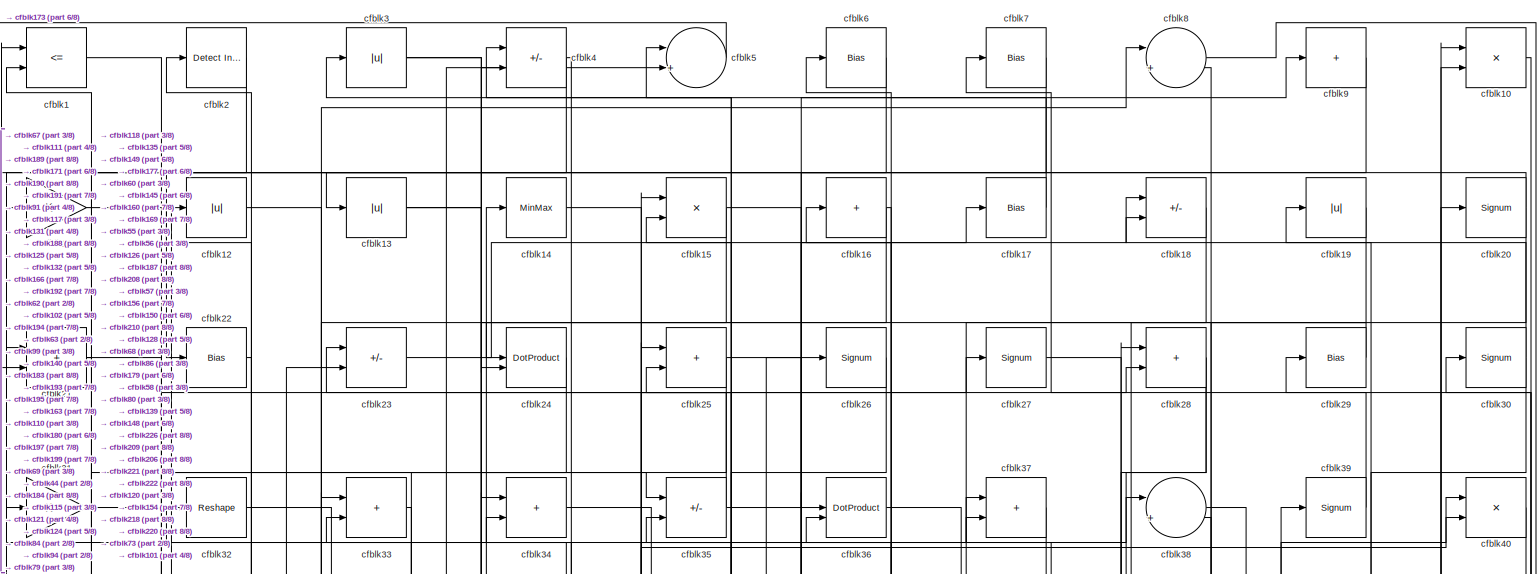
[diagram: root canvas - part 1/8, full width, top band]
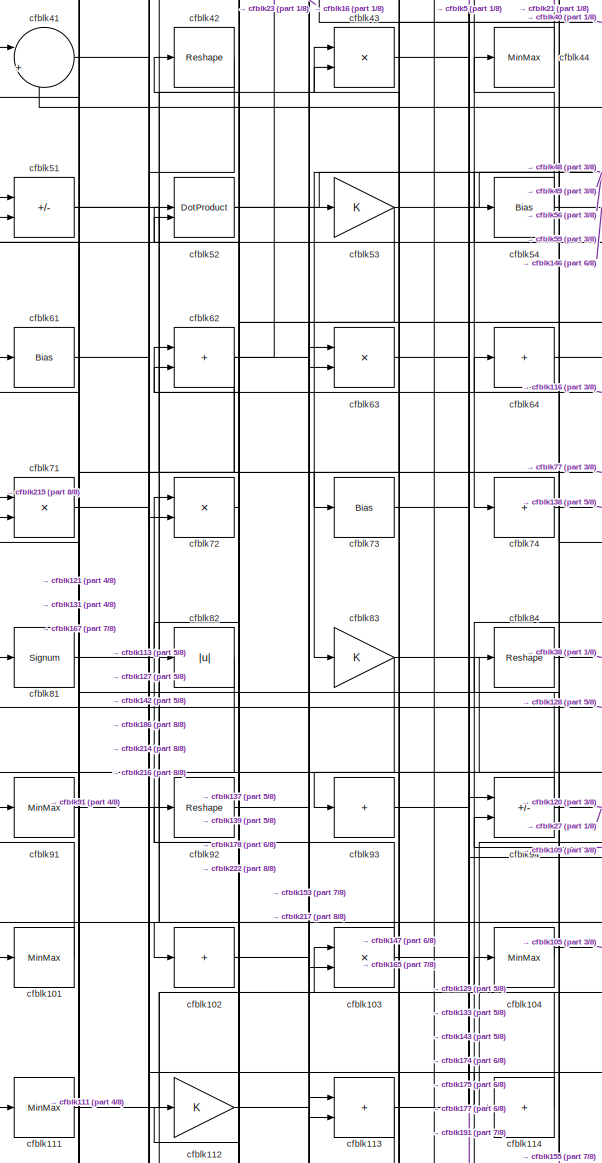
[diagram: root canvas - part 2/8, middle left region]
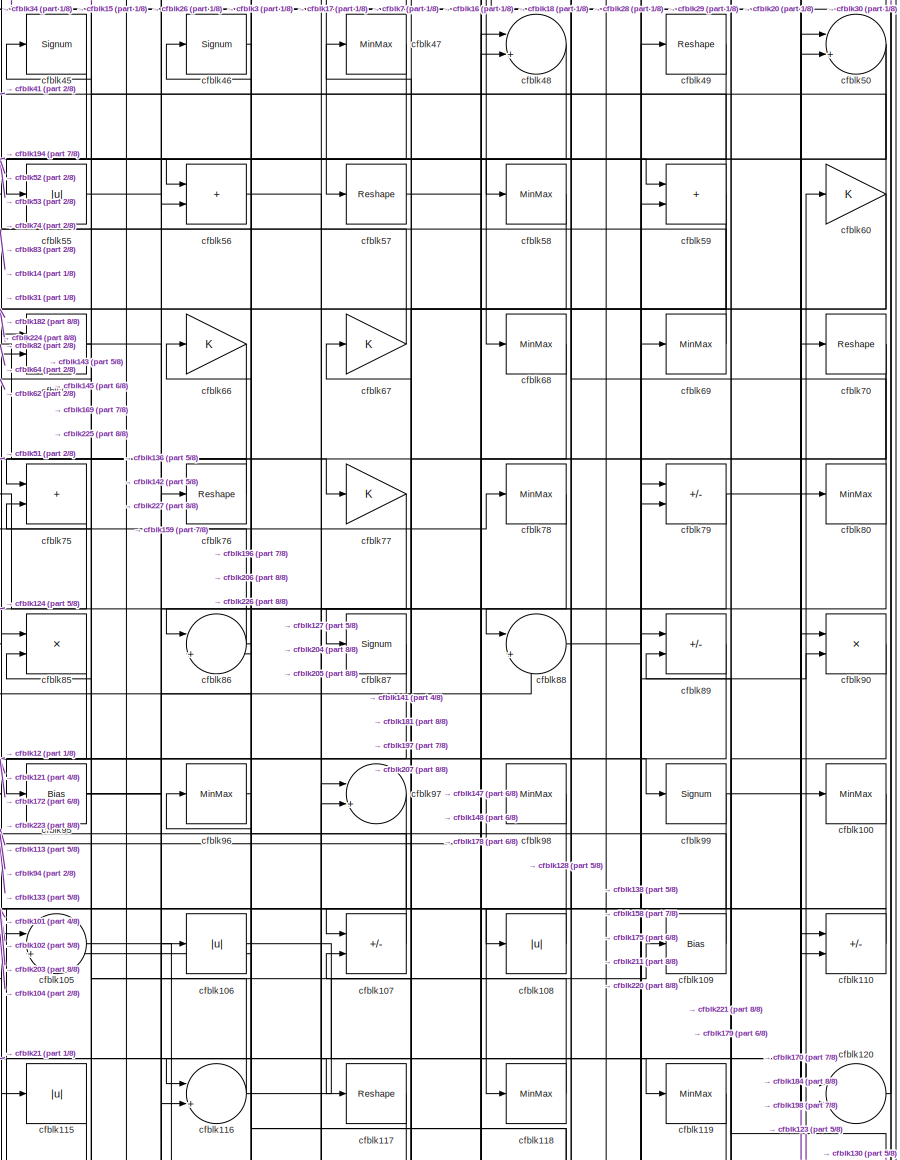
[diagram: root canvas - part 3/8, middle right region]
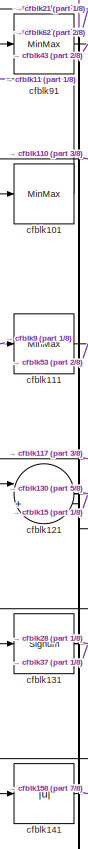
[diagram: root canvas - part 4/8, middle left region]
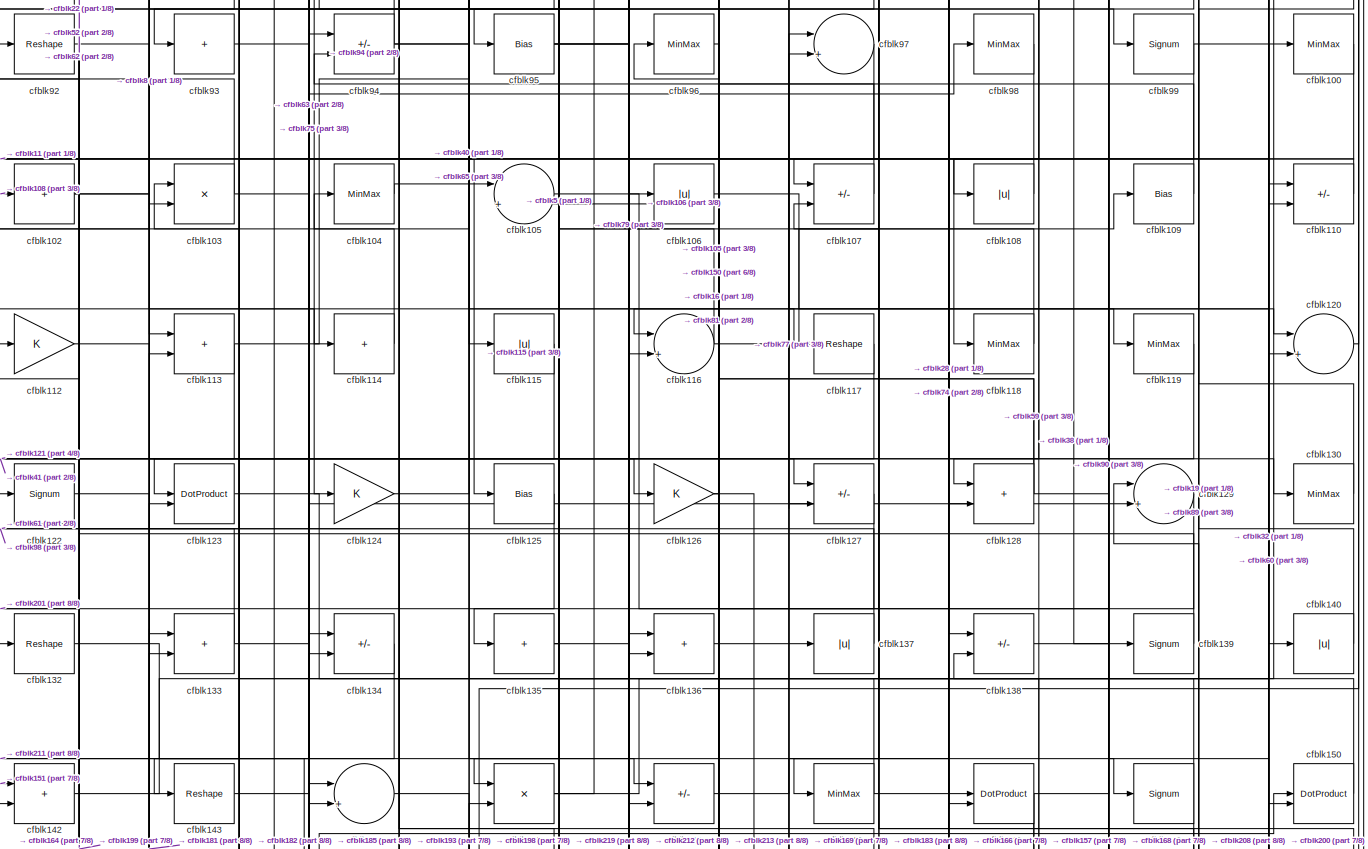
[diagram: root canvas - part 5/8, full width, middle band]
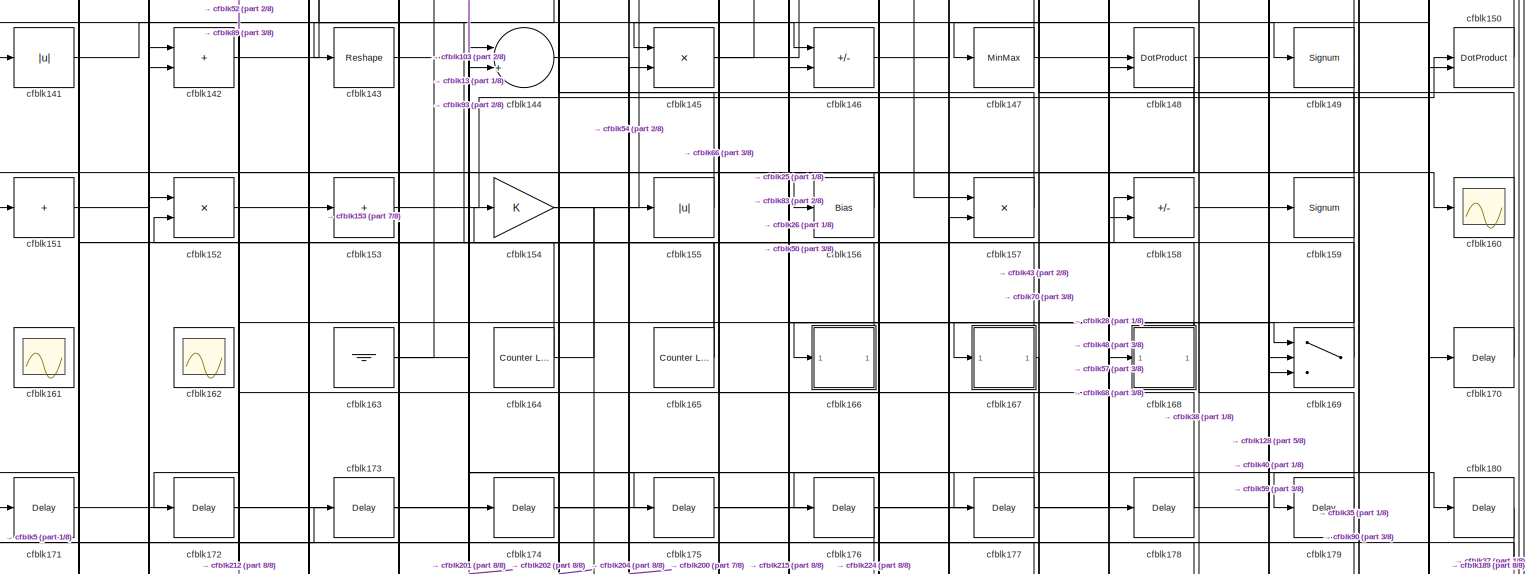
[diagram: root canvas - part 6/8, full width, bottom band]
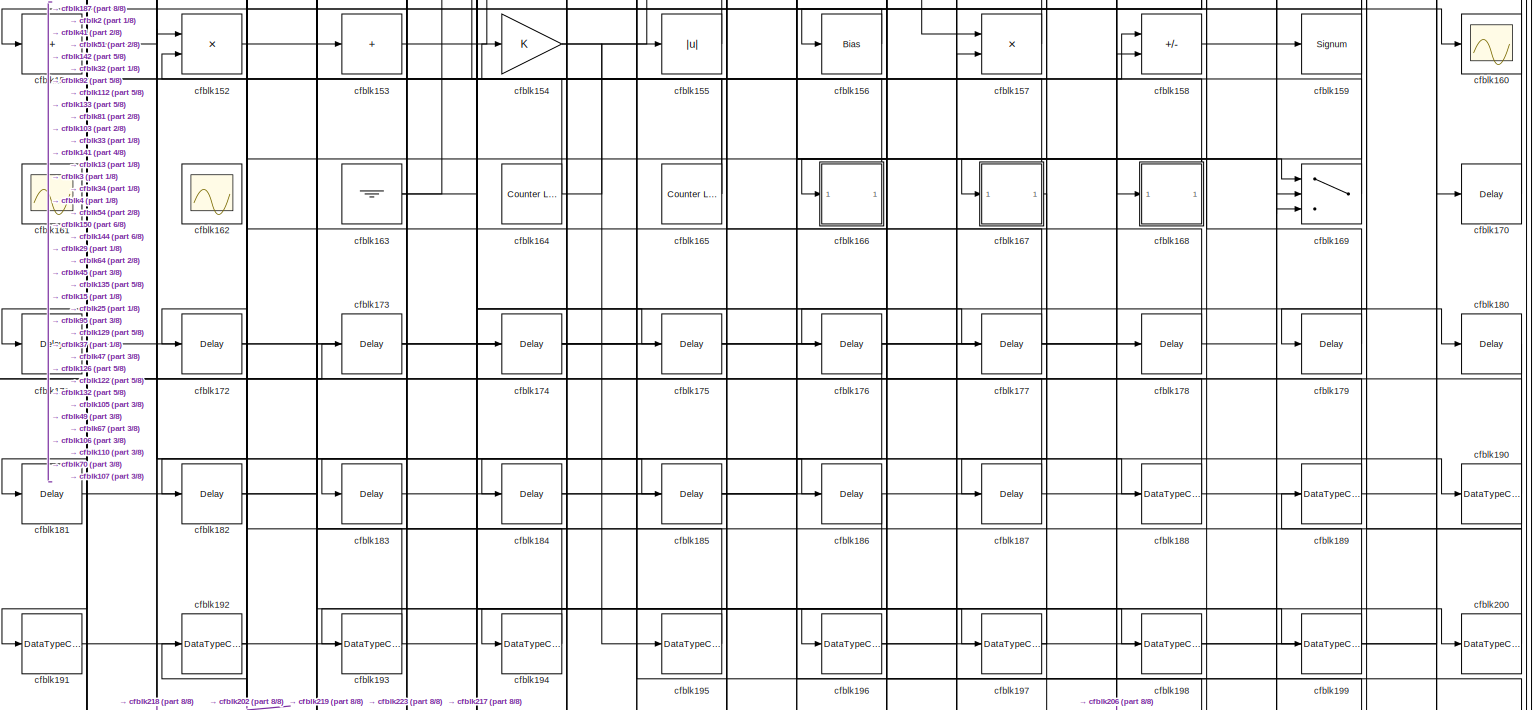
[diagram: root canvas - part 7/8, full width, bottom band]
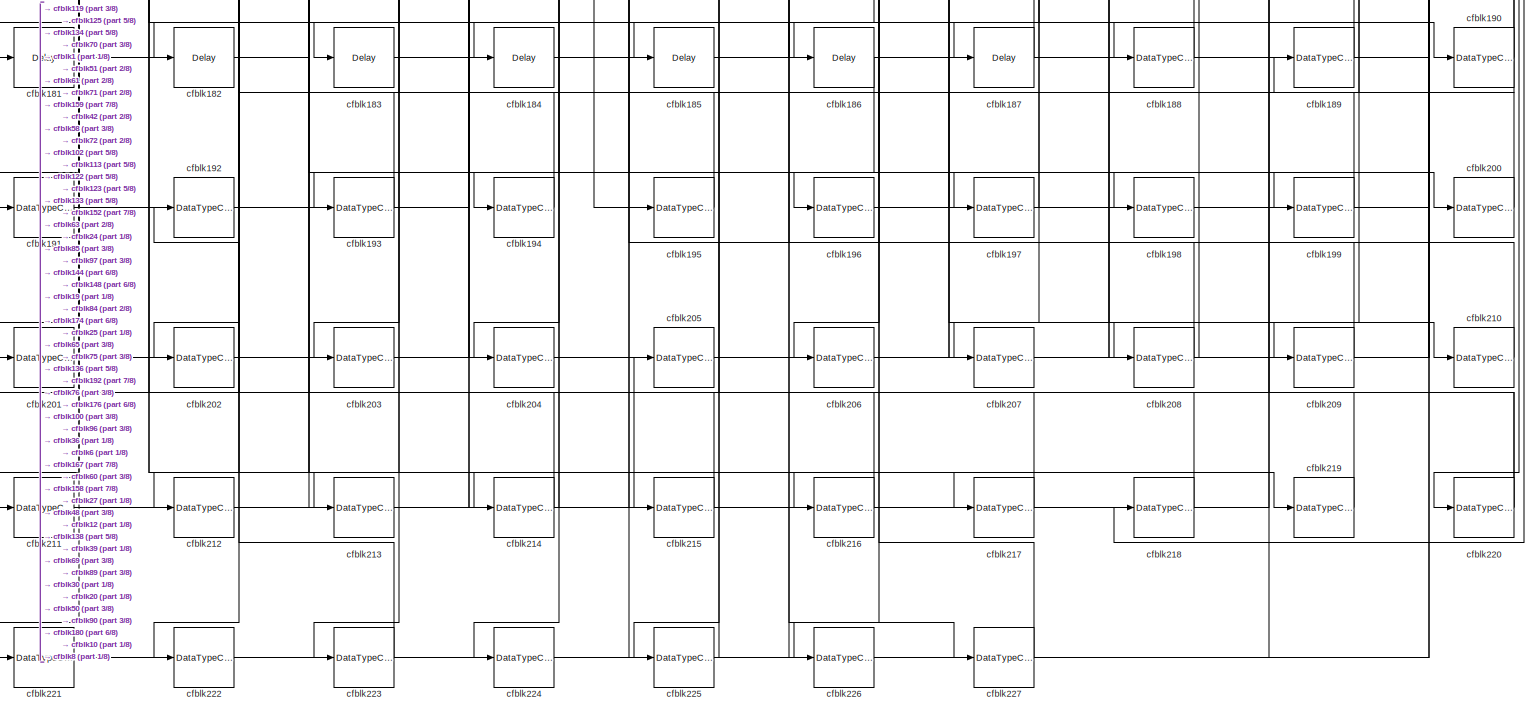
[diagram: root canvas - part 8/8, full width, bottom band]
MODEL slx_cafac20f28f2
KIND model
CONFIG AbsTol = auto
CONFIG EnableMultiTasking = off
CONFIG FixedStep = auto
CONFIG MaxStep = auto
CONFIG MinStep = auto
CONFIG RelTol = 1e-3
CONFIG SampleTimeConstraint = Unconstrained
CONFIG SolverName = VariableStepAuto
CONFIG StartTime = 0.0
CONFIG StopTime = 10.0
BLOCK [RelationalOperator] cfblk1
  InputSameDT = off
  Operator = <=
  OutDataTypeStr = boolean
BLOCK [Product] cfblk10
  Inputs = */
  RndMeth = Zero
  SaturateOnIntegerOverflow = on
BLOCK [MinMax] cfblk100
BLOCK [MinMax] cfblk101
BLOCK [Sum] cfblk102
  IconShape = rectangular
  Inputs = +
BLOCK [Product] cfblk103
  Inputs = */
  RndMeth = Zero
  SaturateOnIntegerOverflow = on
BLOCK [MinMax] cfblk104
BLOCK [Sum] cfblk105
  Inputs = |++
BLOCK [Abs] cfblk106
  SaturateOnIntegerOverflow = off
BLOCK [Sum] cfblk107
  IconShape = rectangular
  Inputs = +-
BLOCK [Abs] cfblk108
  SaturateOnIntegerOverflow = off
BLOCK [Bias] cfblk109
  Bias = 0.0
  SaturateOnIntegerOverflow = off
BLOCK [Gain] cfblk11
BLOCK [Sum] cfblk110
  IconShape = rectangular
  Inputs = +-
BLOCK [MinMax] cfblk111
BLOCK [Gain] cfblk112
BLOCK [Sum] cfblk113
  IconShape = rectangular
BLOCK [Sum] cfblk114
  IconShape = rectangular
  Inputs = +
BLOCK [Abs] cfblk115
  SaturateOnIntegerOverflow = off
BLOCK [Sum] cfblk116
  Inputs = |++
BLOCK [Reshape] cfblk117
BLOCK [MinMax] cfblk118
BLOCK [MinMax] cfblk119
BLOCK [Abs] cfblk12
  SaturateOnIntegerOverflow = off
BLOCK [Sum] cfblk120
  Inputs = |++
BLOCK [Sum] cfblk121
  Inputs = |++
BLOCK [Signum] cfblk122
BLOCK [DotProduct] cfblk123
  OutDataTypeStr = Inherit: Inherit via internal rule
BLOCK [Gain] cfblk124
BLOCK [Bias] cfblk125
  Bias = 0.0
  SaturateOnIntegerOverflow = off
BLOCK [Gain] cfblk126
BLOCK [Sum] cfblk127
  IconShape = rectangular
  Inputs = +-
BLOCK [Sum] cfblk128
  IconShape = rectangular
BLOCK [Sum] cfblk129
  Inputs = |++
BLOCK [Abs] cfblk13
  SaturateOnIntegerOverflow = off
BLOCK [MinMax] cfblk130
BLOCK [Signum] cfblk131
BLOCK [Reshape] cfblk132
BLOCK [Sum] cfblk133
  IconShape = rectangular
BLOCK [Sum] cfblk134
  IconShape = rectangular
  Inputs = +-
BLOCK [Sum] cfblk135
  IconShape = rectangular
  Inputs = +
BLOCK [Sum] cfblk136
  IconShape = rectangular
BLOCK [Abs] cfblk137
  SaturateOnIntegerOverflow = off
BLOCK [Sum] cfblk138
  IconShape = rectangular
  Inputs = +-
BLOCK [Signum] cfblk139
BLOCK [MinMax] cfblk14
BLOCK [Abs] cfblk140
  SaturateOnIntegerOverflow = off
BLOCK [Abs] cfblk141
  SaturateOnIntegerOverflow = off
BLOCK [Sum] cfblk142
  IconShape = rectangular
BLOCK [Reshape] cfblk143
BLOCK [Sum] cfblk144
  Inputs = |++
BLOCK [Product] cfblk145
  Inputs = */
  RndMeth = Zero
  SaturateOnIntegerOverflow = on
BLOCK [Sum] cfblk146
  IconShape = rectangular
  Inputs = +-
BLOCK [MinMax] cfblk147
BLOCK [DotProduct] cfblk148
  OutDataTypeStr = Inherit: Inherit via internal rule
BLOCK [Signum] cfblk149
BLOCK [Product] cfblk15
  Inputs = */
  RndMeth = Zero
  SaturateOnIntegerOverflow = on
BLOCK [DotProduct] cfblk150
  OutDataTypeStr = Inherit: Inherit via internal rule
BLOCK [Sum] cfblk151
  IconShape = rectangular
  Inputs = +
BLOCK [Product] cfblk152
  Inputs = */
  RndMeth = Zero
  SaturateOnIntegerOverflow = on
BLOCK [Sum] cfblk153
  IconShape = rectangular
  Inputs = +
BLOCK [Gain] cfblk154
BLOCK [Abs] cfblk155
  SaturateOnIntegerOverflow = off
BLOCK [Bias] cfblk156
  Bias = 0.0
  SaturateOnIntegerOverflow = off
BLOCK [Product] cfblk157
  Inputs = */
  RndMeth = Zero
  SaturateOnIntegerOverflow = on
BLOCK [Sum] cfblk158
  IconShape = rectangular
  Inputs = +-
BLOCK [Signum] cfblk159
BLOCK [Sum] cfblk16
  IconShape = rectangular
  Inputs = +
BLOCK [Scope] cfblk160
  Floating = off
  NumInputPorts = 1
  ScopeSpecificationString = Simulink.scopes.TimeScopeBlockCfg('CurrentConfiguration', extmgr.ConfigurationSet(extmgr.Configuration('Core','General UI',true),extmgr.Configuration('Core','Source UI',true),extmgr.Configuration('Sources','WiredSimulink',true,'DataLoggingVariableName','ScopeData2','DataLoggingSaveFormat','Array','DataLoggingLimitDataPoints',true,'DataLoggingDecimation','1'),extmgr.Configuration('Visuals','Time Do...<+868ch>
BLOCK [Scope] cfblk161
  Floating = on
  NumInputPorts = 1
  ScopeSpecificationString = Simulink.scopes.TimeScopeBlockCfg('CurrentConfiguration', extmgr.ConfigurationSet(extmgr.Configuration('Core','General UI',true,'FigureColor',[0.156862745098039 0.156862745098039 0.156862745098039]),extmgr.Configuration('Core','Source UI',true),extmgr.Configuration('Sources','WiredSimulink',true,'DataLoggingVariableName','ScopeData1','DataLoggingSaveFormat','StructureWithTime','DataLoggingLimitDat...<+2713ch>
BLOCK [Scope] cfblk162
  Floating = on
  NumInputPorts = 1
  ScopeSpecificationString = Simulink.scopes.TimeScopeBlockCfg('CurrentConfiguration', extmgr.ConfigurationSet(extmgr.Configuration('Core','General UI',true,'FigureColor',[0.156862745098039 0.156862745098039 0.156862745098039]),extmgr.Configuration('Core','Source UI',true),extmgr.Configuration('Sources','WiredSimulink',true,'DataLoggingVariableName','ScopeData1','DataLoggingSaveFormat','StructureWithTime','DataLoggingLimitDat...<+2713ch>
BLOCK [Ground] cfblk163
BLOCK [Reference] cfblk164  REF=hdlsllib/Sources/Counter
Limited
  SourceBlock = hdlsllib/Sources/Counter\nLimited
  SourceType = Counter Limited
BLOCK [Reference] cfblk165  REF=hdlsllib/Sources/Counter
Limited
  SourceBlock = hdlsllib/Sources/Counter\nLimited
  SourceType = Counter Limited
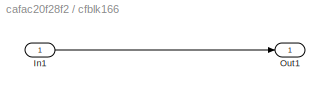
BLOCK [SubSystem] cfblk166
  LibrarySourceBlock = hdlsllib/Ports &\nSubsystems/Subsystem
BLOCK [Inport] cfblk166/In1
BLOCK [Outport] cfblk166/Out1
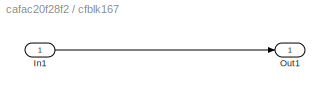
BLOCK [SubSystem] cfblk167
  LibrarySourceBlock = hdlsllib/Ports &\nSubsystems/Subsystem
BLOCK [Inport] cfblk167/In1
BLOCK [Outport] cfblk167/Out1
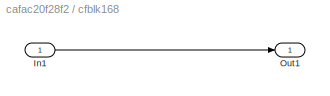
BLOCK [SubSystem] cfblk168
  LibrarySourceBlock = hdlsllib/Ports &\nSubsystems/Subsystem
BLOCK [Inport] cfblk168/In1
BLOCK [Outport] cfblk168/Out1
BLOCK [Switch] cfblk169
  InputSameDT = off
  SaturateOnIntegerOverflow = off
BLOCK [Bias] cfblk17
  Bias = 0.0
  SaturateOnIntegerOverflow = off
BLOCK [Delay] cfblk170
  InputPortMap = u0
  SampleTime = 1
BLOCK [Delay] cfblk171
  InputPortMap = u0
  SampleTime = 1
BLOCK [Delay] cfblk172
  InputPortMap = u0
  SampleTime = 1
BLOCK [Delay] cfblk173
  InputPortMap = u0
  SampleTime = 1
BLOCK [Delay] cfblk174
  InputPortMap = u0
  SampleTime = 1
BLOCK [Delay] cfblk175
  InputPortMap = u0
  SampleTime = 1
BLOCK [Delay] cfblk176
  InputPortMap = u0
  SampleTime = 1
BLOCK [Delay] cfblk177
  InputPortMap = u0
  SampleTime = 1
BLOCK [Delay] cfblk178
  InputPortMap = u0
  SampleTime = 1
BLOCK [Delay] cfblk179
  InputPortMap = u0
  SampleTime = 1
BLOCK [Sum] cfblk18
  IconShape = rectangular
  Inputs = +-
BLOCK [Delay] cfblk180
  InputPortMap = u0
  SampleTime = 1
BLOCK [Delay] cfblk181
  InputPortMap = u0
  SampleTime = 1
BLOCK [Delay] cfblk182
  InputPortMap = u0
  SampleTime = 1
BLOCK [Delay] cfblk183
  InputPortMap = u0
  SampleTime = 1
BLOCK [Delay] cfblk184
  InputPortMap = u0
  SampleTime = 1
BLOCK [Delay] cfblk185
  InputPortMap = u0
  SampleTime = 1
BLOCK [Delay] cfblk186
  InputPortMap = u0
  SampleTime = 1
BLOCK [Delay] cfblk187
  InputPortMap = u0
  SampleTime = 1
BLOCK [DataTypeConversion] cfblk188
  OutDataTypeStr = uint8
  RndMeth = Floor
  SaturateOnIntegerOverflow = off
BLOCK [DataTypeConversion] cfblk189
  OutDataTypeStr = uint8
  RndMeth = Floor
  SaturateOnIntegerOverflow = off
BLOCK [Abs] cfblk19
  SaturateOnIntegerOverflow = off
BLOCK [DataTypeConversion] cfblk190
  OutDataTypeStr = uint8
  RndMeth = Floor
  SaturateOnIntegerOverflow = off
BLOCK [DataTypeConversion] cfblk191
  OutDataTypeStr = uint8
  RndMeth = Floor
  SaturateOnIntegerOverflow = off
BLOCK [DataTypeConversion] cfblk192
  OutDataTypeStr = uint8
  RndMeth = Floor
  SaturateOnIntegerOverflow = off
BLOCK [DataTypeConversion] cfblk193
  OutDataTypeStr = uint8
  RndMeth = Floor
  SaturateOnIntegerOverflow = off
BLOCK [DataTypeConversion] cfblk194
  OutDataTypeStr = uint8
  RndMeth = Floor
  SaturateOnIntegerOverflow = off
BLOCK [DataTypeConversion] cfblk195
  OutDataTypeStr = uint8
  RndMeth = Floor
  SaturateOnIntegerOverflow = off
BLOCK [DataTypeConversion] cfblk196
  RndMeth = Floor
  SaturateOnIntegerOverflow = off
BLOCK [DataTypeConversion] cfblk197
  OutDataTypeStr = uint8
  RndMeth = Floor
  SaturateOnIntegerOverflow = off
BLOCK [DataTypeConversion] cfblk198
  OutDataTypeStr = uint8
  RndMeth = Floor
  SaturateOnIntegerOverflow = off
BLOCK [DataTypeConversion] cfblk199
  OutDataTypeStr = uint8
  RndMeth = Floor
  SaturateOnIntegerOverflow = off
BLOCK [Reference] cfblk2  REF=simulink/Logic and Bit
Operations/Detect
Increase
  LibrarySourceBlock = hdlsllib/Logic and Bit\nOperations/Detect\nIncrease
  SourceBlock = simulink/Logic and Bit\nOperations/Detect\nIncrease
  SourceType = Detect Increase
BLOCK [Signum] cfblk20
BLOCK [DataTypeConversion] cfblk200
  OutDataTypeStr = uint8
  RndMeth = Floor
  SaturateOnIntegerOverflow = off
BLOCK [DataTypeConversion] cfblk201
  OutDataTypeStr = uint8
  RndMeth = Floor
  SaturateOnIntegerOverflow = off
BLOCK [DataTypeConversion] cfblk202
  OutDataTypeStr = uint8
  RndMeth = Floor
  SaturateOnIntegerOverflow = off
BLOCK [DataTypeConversion] cfblk203
  OutDataTypeStr = uint8
  RndMeth = Floor
  SaturateOnIntegerOverflow = off
BLOCK [DataTypeConversion] cfblk204
  OutDataTypeStr = uint8
  RndMeth = Floor
  SaturateOnIntegerOverflow = off
BLOCK [DataTypeConversion] cfblk205
  OutDataTypeStr = uint8
  RndMeth = Floor
  SaturateOnIntegerOverflow = off
BLOCK [DataTypeConversion] cfblk206
  RndMeth = Floor
  SaturateOnIntegerOverflow = off
BLOCK [DataTypeConversion] cfblk207
  OutDataTypeStr = uint8
  RndMeth = Floor
  SaturateOnIntegerOverflow = off
BLOCK [DataTypeConversion] cfblk208
  RndMeth = Floor
  SaturateOnIntegerOverflow = off
BLOCK [DataTypeConversion] cfblk209
  OutDataTypeStr = uint8
  RndMeth = Floor
  SaturateOnIntegerOverflow = off
BLOCK [Sum] cfblk21
  IconShape = rectangular
BLOCK [DataTypeConversion] cfblk210
  OutDataTypeStr = uint8
  RndMeth = Floor
  SaturateOnIntegerOverflow = off
BLOCK [DataTypeConversion] cfblk211
  RndMeth = Floor
  SaturateOnIntegerOverflow = off
BLOCK [DataTypeConversion] cfblk212
  OutDataTypeStr = uint8
  RndMeth = Floor
  SaturateOnIntegerOverflow = off
BLOCK [DataTypeConversion] cfblk213
  OutDataTypeStr = uint8
  RndMeth = Floor
  SaturateOnIntegerOverflow = off
BLOCK [DataTypeConversion] cfblk214
  RndMeth = Floor
  SaturateOnIntegerOverflow = off
BLOCK [DataTypeConversion] cfblk215
  OutDataTypeStr = uint8
  RndMeth = Floor
  SaturateOnIntegerOverflow = off
BLOCK [DataTypeConversion] cfblk216
  OutDataTypeStr = uint8
  RndMeth = Floor
  SaturateOnIntegerOverflow = off
BLOCK [DataTypeConversion] cfblk217
  OutDataTypeStr = uint8
  RndMeth = Floor
  SaturateOnIntegerOverflow = off
BLOCK [DataTypeConversion] cfblk218
  OutDataTypeStr = uint8
  RndMeth = Floor
  SaturateOnIntegerOverflow = off
BLOCK [DataTypeConversion] cfblk219
  OutDataTypeStr = uint8
  RndMeth = Floor
  SaturateOnIntegerOverflow = off
BLOCK [Bias] cfblk22
  Bias = 0.0
  SaturateOnIntegerOverflow = off
BLOCK [DataTypeConversion] cfblk220
  RndMeth = Floor
  SaturateOnIntegerOverflow = off
BLOCK [DataTypeConversion] cfblk221
  OutDataTypeStr = uint8
  RndMeth = Floor
  SaturateOnIntegerOverflow = off
BLOCK [DataTypeConversion] cfblk222
  OutDataTypeStr = uint8
  RndMeth = Floor
  SaturateOnIntegerOverflow = off
BLOCK [DataTypeConversion] cfblk223
  RndMeth = Floor
  SaturateOnIntegerOverflow = off
BLOCK [DataTypeConversion] cfblk224
  OutDataTypeStr = uint8
  RndMeth = Floor
  SaturateOnIntegerOverflow = off
BLOCK [DataTypeConversion] cfblk225
  OutDataTypeStr = uint8
  RndMeth = Floor
  SaturateOnIntegerOverflow = off
BLOCK [DataTypeConversion] cfblk226
  OutDataTypeStr = uint8
  RndMeth = Floor
  SaturateOnIntegerOverflow = off
BLOCK [DataTypeConversion] cfblk227
  OutDataTypeStr = uint8
  RndMeth = Floor
  SaturateOnIntegerOverflow = off
BLOCK [Sum] cfblk23
  IconShape = rectangular
  Inputs = +-
BLOCK [DotProduct] cfblk24
  OutDataTypeStr = Inherit: Inherit via internal rule
BLOCK [Sum] cfblk25
  IconShape = rectangular
BLOCK [Signum] cfblk26
BLOCK [Signum] cfblk27
BLOCK [Sum] cfblk28
  IconShape = rectangular
BLOCK [Bias] cfblk29
  Bias = 0.0
  SaturateOnIntegerOverflow = off
BLOCK [Abs] cfblk3
  SaturateOnIntegerOverflow = off
BLOCK [Signum] cfblk30
BLOCK [Gain] cfblk31
BLOCK [Reshape] cfblk32
BLOCK [Sum] cfblk33
  IconShape = rectangular
BLOCK [Sum] cfblk34
  IconShape = rectangular
BLOCK [Sum] cfblk35
  IconShape = rectangular
  Inputs = +-
BLOCK [DotProduct] cfblk36
  OutDataTypeStr = Inherit: Inherit via internal rule
BLOCK [Sum] cfblk37
  IconShape = rectangular
BLOCK [Sum] cfblk38
  Inputs = |++
BLOCK [Signum] cfblk39
BLOCK [Sum] cfblk4
  IconShape = rectangular
  Inputs = +-
BLOCK [Product] cfblk40
  Inputs = */
  RndMeth = Zero
  SaturateOnIntegerOverflow = on
BLOCK [Sum] cfblk41
  Inputs = |++
BLOCK [Reshape] cfblk42
BLOCK [Product] cfblk43
  Inputs = */
  RndMeth = Zero
  SaturateOnIntegerOverflow = on
BLOCK [MinMax] cfblk44
BLOCK [Signum] cfblk45
BLOCK [Signum] cfblk46
BLOCK [MinMax] cfblk47
BLOCK [Sum] cfblk48
  Inputs = |++
BLOCK [Reshape] cfblk49
BLOCK [Sum] cfblk5
  Inputs = |++
BLOCK [Sum] cfblk50
  Inputs = |++
BLOCK [Sum] cfblk51
  IconShape = rectangular
  Inputs = +-
BLOCK [DotProduct] cfblk52
  OutDataTypeStr = Inherit: Inherit via internal rule
BLOCK [Gain] cfblk53
BLOCK [Bias] cfblk54
  Bias = 0.0
  SaturateOnIntegerOverflow = off
BLOCK [Abs] cfblk55
  SaturateOnIntegerOverflow = off
BLOCK [Sum] cfblk56
  IconShape = rectangular
BLOCK [Reshape] cfblk57
BLOCK [MinMax] cfblk58
BLOCK [Sum] cfblk59
  IconShape = rectangular
BLOCK [Bias] cfblk6
  Bias = 0.0
  SaturateOnIntegerOverflow = off
BLOCK [Gain] cfblk60
BLOCK [Bias] cfblk61
  Bias = 0.0
  SaturateOnIntegerOverflow = off
BLOCK [Sum] cfblk62
  IconShape = rectangular
BLOCK [Product] cfblk63
  Inputs = */
  RndMeth = Zero
  SaturateOnIntegerOverflow = on
BLOCK [Sum] cfblk64
  IconShape = rectangular
  Inputs = +
BLOCK [Sum] cfblk65
  IconShape = rectangular
BLOCK [Gain] cfblk66
BLOCK [Gain] cfblk67
BLOCK [MinMax] cfblk68
BLOCK [MinMax] cfblk69
BLOCK [Bias] cfblk7
  Bias = 0.0
  SaturateOnIntegerOverflow = off
BLOCK [Reshape] cfblk70
BLOCK [Product] cfblk71
  Inputs = */
  RndMeth = Zero
  SaturateOnIntegerOverflow = on
BLOCK [Product] cfblk72
  Inputs = */
  RndMeth = Zero
  SaturateOnIntegerOverflow = on
BLOCK [Bias] cfblk73
  Bias = 0.0
  SaturateOnIntegerOverflow = off
BLOCK [Sum] cfblk74
  IconShape = rectangular
  Inputs = +
BLOCK [Sum] cfblk75
  IconShape = rectangular
BLOCK [Reshape] cfblk76
BLOCK [Gain] cfblk77
BLOCK [MinMax] cfblk78
BLOCK [Sum] cfblk79
  IconShape = rectangular
  Inputs = +-
BLOCK [Sum] cfblk8
  Inputs = |++
BLOCK [MinMax] cfblk80
BLOCK [Signum] cfblk81
BLOCK [Abs] cfblk82
  SaturateOnIntegerOverflow = off
BLOCK [Gain] cfblk83
BLOCK [Reshape] cfblk84
BLOCK [Product] cfblk85
  Inputs = */
  RndMeth = Zero
  SaturateOnIntegerOverflow = on
BLOCK [Sum] cfblk86
  Inputs = |++
BLOCK [Signum] cfblk87
BLOCK [Sum] cfblk88
  Inputs = |++
BLOCK [Sum] cfblk89
  IconShape = rectangular
  Inputs = +-
BLOCK [Sum] cfblk9
  IconShape = rectangular
  Inputs = +
BLOCK [Product] cfblk90
  Inputs = */
  RndMeth = Zero
  SaturateOnIntegerOverflow = on
BLOCK [MinMax] cfblk91
BLOCK [Reshape] cfblk92
BLOCK [Sum] cfblk93
  IconShape = rectangular
  Inputs = +
BLOCK [Sum] cfblk94
  IconShape = rectangular
  Inputs = +-
BLOCK [Bias] cfblk95
  Bias = 0.0
  SaturateOnIntegerOverflow = off
BLOCK [MinMax] cfblk96
BLOCK [Sum] cfblk97
  Inputs = |++
BLOCK [MinMax] cfblk98
BLOCK [Signum] cfblk99
LINE cfblk100:1 -> cfblk206:1
LINE cfblk101:1 -> cfblk11:1
NET cfblk102:1 -> cfblk219:1, cfblk8:1
NET cfblk103:1 -> cfblk177:1, cfblk72:1
LINE cfblk104:1 -> cfblk105:1
LINE cfblk105:1 -> cfblk159:1
LINE cfblk106:1 -> cfblk170:1
LINE cfblk107:1 -> cfblk66:1
LINE cfblk108:1 -> cfblk102:1
LINE cfblk109:1 -> cfblk94:2
LINE cfblk10:1 -> cfblk220:1
LINE cfblk110:1 -> cfblk101:1
LINE cfblk111:1 -> cfblk53:1
LINE cfblk112:1 -> cfblk198:1
NET cfblk113:1 -> cfblk123:1, cfblk65:1
LINE cfblk114:1 -> cfblk104:1
LINE cfblk115:1 -> cfblk143:1
NET cfblk116:1 -> cfblk109:1, cfblk62:2
LINE cfblk117:1 -> cfblk141:1
LINE cfblk118:1 -> cfblk3:1
LINE cfblk119:1 -> cfblk221:1
LINE cfblk11:1 -> cfblk125:1
LINE cfblk120:1 -> cfblk30:1
NET cfblk121:1 -> cfblk130:1, cfblk15:1
LINE cfblk122:1 -> cfblk185:1
LINE cfblk123:1 -> cfblk60:1
LINE cfblk124:1 -> cfblk40:1
LINE cfblk125:1 -> cfblk201:1
NET cfblk126:1 -> cfblk157:1, cfblk16:1
LINE cfblk127:1 -> cfblk135:1
NET cfblk128:1 -> cfblk105:2, cfblk150:2, cfblk81:1
LINE cfblk129:1 -> cfblk166:1
LINE cfblk12:1 -> cfblk99:1
LINE cfblk130:1 -> cfblk89:2
NET cfblk131:1 -> cfblk28:2, cfblk37:2
LINE cfblk132:1 -> cfblk168:1
NET cfblk133:1 -> cfblk61:1, cfblk98:1
LINE cfblk134:1 -> cfblk211:1
NET cfblk135:1 -> cfblk169:1, cfblk5:1
LINE cfblk136:1 -> cfblk137:1
LINE cfblk137:1 -> cfblk52:1
LINE cfblk138:1 -> cfblk90:2
LINE cfblk139:1 -> cfblk62:1
NET cfblk13:1 -> cfblk180:1, cfblk199:1
LINE cfblk140:1 -> cfblk19:1
LINE cfblk141:1 -> cfblk158:1
LINE cfblk142:1 -> cfblk106:1
LINE cfblk143:1 -> cfblk94:1
LINE cfblk144:1 -> cfblk200:1
NET cfblk145:1 -> cfblk26:1, cfblk50:1
LINE cfblk146:1 -> cfblk149:1
NET cfblk147:1 -> cfblk43:2, cfblk48:2
NET cfblk148:1 -> cfblk204:1, cfblk212:1, cfblk40:2
NET cfblk149:1 -> cfblk176:1, cfblk35:2
LINE cfblk14:1 -> cfblk115:1
LINE cfblk150:1 -> cfblk37:1
LINE cfblk151:1 -> cfblk142:1
LINE cfblk152:1 -> cfblk217:1
LINE cfblk153:1 -> cfblk150:1
NET cfblk154:1 -> cfblk195:1, cfblk29:1
LINE cfblk155:1 -> cfblk64:1
LINE cfblk156:1 -> cfblk151:1
LINE cfblk157:1 -> cfblk122:1
LINE cfblk158:1 -> cfblk49:1
NET cfblk159:1 -> cfblk202:1, cfblk67:1
NET cfblk15:1 -> cfblk160:1, cfblk24:2
NET cfblk163:1 -> cfblk34:1, cfblk4:2
NET cfblk164:1 -> cfblk155:1, cfblk92:1
NET cfblk165:1 -> cfblk103:1, cfblk51:1
LINE cfblk166/In1:1 -> cfblk166/Out1:1
LINE cfblk166:1 -> cfblk32:1
LINE cfblk167/In1:1 -> cfblk167/Out1:1
NET cfblk167:1 -> cfblk187:1, cfblk41:1
LINE cfblk168/In1:1 -> cfblk168/Out1:1
NET cfblk168:1 -> cfblk154:1, cfblk167:1
LINE cfblk169:1 -> cfblk45:1
NET cfblk16:1 -> cfblk63:2, cfblk86:2
LINE cfblk170:1 -> cfblk107:2
LINE cfblk171:1 -> cfblk148:1
LINE cfblk172:1 -> cfblk145:2
LINE cfblk173:1 -> cfblk28:1
LINE cfblk174:1 -> cfblk215:1
LINE cfblk175:1 -> cfblk59:2
LINE cfblk176:1 -> cfblk224:1
LINE cfblk177:1 -> cfblk25:2
LINE cfblk178:1 -> cfblk52:2
LINE cfblk179:1 -> cfblk38:2
LINE cfblk17:1 -> cfblk4:1
LINE cfblk180:1 -> cfblk189:1
LINE cfblk181:1 -> cfblk133:2
LINE cfblk182:1 -> cfblk113:2
LINE cfblk183:1 -> cfblk136:1
LINE cfblk184:1 -> cfblk50:2
LINE cfblk185:1 -> cfblk190:1
LINE cfblk186:1 -> cfblk213:1
LINE cfblk187:1 -> cfblk6:1
LINE cfblk188:1 -> cfblk12:1
LINE cfblk189:1 -> cfblk1:1
LINE cfblk18:1 -> cfblk57:1
LINE cfblk190:1 -> cfblk1:2
LINE cfblk191:1 -> cfblk54:1
LINE cfblk192:1 -> cfblk2:1
LINE cfblk193:1 -> cfblk133:1
LINE cfblk194:1 -> cfblk33:1
LINE cfblk195:1 -> cfblk33:2
NET cfblk196:1 -> cfblk110:1, cfblk157:2
LINE cfblk197:1 -> cfblk47:1
LINE cfblk198:1 -> cfblk70:1
LINE cfblk199:1 -> cfblk112:1
LINE cfblk19:1 -> cfblk184:1
LINE cfblk1:1 -> cfblk188:1
LINE cfblk200:1 -> cfblk129:1
LINE cfblk201:1 -> cfblk144:1
LINE cfblk202:1 -> cfblk144:2
LINE cfblk203:1 -> cfblk90:1
LINE cfblk204:1 -> cfblk97:1
LINE cfblk205:1 -> cfblk97:2
NET cfblk206:1 -> cfblk158:2, cfblk20:1, cfblk48:1
LINE cfblk207:1 -> cfblk100:1
NET cfblk208:1 -> cfblk138:2, cfblk25:1
LINE cfblk209:1 -> cfblk36:1
NET cfblk20:1 -> cfblk13:1, cfblk58:1
LINE cfblk210:1 -> cfblk36:2
NET cfblk211:1 -> cfblk123:2, cfblk205:1, cfblk69:1
LINE cfblk212:1 -> cfblk134:1
LINE cfblk213:1 -> cfblk134:2
NET cfblk214:1 -> cfblk42:1, cfblk84:1
LINE cfblk215:1 -> cfblk71:1
LINE cfblk216:1 -> cfblk71:2
LINE cfblk217:1 -> cfblk63:1
LINE cfblk218:1 -> cfblk152:1
LINE cfblk219:1 -> cfblk152:2
NET cfblk21:1 -> cfblk117:1, cfblk91:1
NET cfblk220:1 -> cfblk75:2, cfblk89:1
LINE cfblk221:1 -> cfblk10:1
LINE cfblk222:1 -> cfblk10:2
NET cfblk223:1 -> cfblk192:1, cfblk76:1
LINE cfblk224:1 -> cfblk85:1
LINE cfblk225:1 -> cfblk85:2
LINE cfblk226:1 -> cfblk39:1
LINE cfblk227:1 -> cfblk96:1
LINE cfblk22:1 -> cfblk132:1
LINE cfblk23:1 -> cfblk18:2
LINE cfblk24:1 -> cfblk183:1
NET cfblk25:1 -> cfblk169:2, cfblk171:1
LINE cfblk26:1 -> cfblk55:1
LINE cfblk27:1 -> cfblk210:1
NET cfblk28:1 -> cfblk128:2, cfblk68:1
LINE cfblk29:1 -> cfblk86:1
LINE cfblk2:1 -> cfblk191:1
NET cfblk30:1 -> cfblk209:1, cfblk8:2
LINE cfblk31:1 -> cfblk35:1
LINE cfblk32:1 -> cfblk140:1
LINE cfblk33:1 -> cfblk193:1
LINE cfblk34:1 -> cfblk79:1
NET cfblk35:1 -> cfblk23:1, cfblk9:1
LINE cfblk36:1 -> cfblk208:1
LINE cfblk37:1 -> cfblk156:1
LINE cfblk38:1 -> cfblk139:1
LINE cfblk39:1 -> cfblk7:1
NET cfblk3:1 -> cfblk110:2, cfblk197:1
LINE cfblk40:1 -> cfblk73:1
LINE cfblk41:1 -> cfblk127:1
LINE cfblk42:1 -> cfblk72:2
LINE cfblk43:1 -> cfblk174:1
LINE cfblk44:1 -> cfblk21:1
LINE cfblk45:1 -> cfblk194:1
LINE cfblk46:1 -> cfblk116:1
LINE cfblk47:1 -> cfblk196:1
LINE cfblk48:1 -> cfblk74:1
LINE cfblk49:1 -> cfblk83:1
NET cfblk4:1 -> cfblk21:2, cfblk24:1
NET cfblk50:1 -> cfblk65:2, cfblk95:1
NET cfblk51:1 -> cfblk186:1, cfblk77:1
NET cfblk52:1 -> cfblk114:1, cfblk59:1
NET cfblk53:1 -> cfblk103:2, cfblk56:1
NET cfblk54:1 -> cfblk146:1, cfblk44:1
LINE cfblk55:1 -> cfblk17:1
LINE cfblk56:1 -> cfblk119:1
LINE cfblk57:1 -> cfblk178:1
LINE cfblk58:1 -> cfblk182:1
NET cfblk59:1 -> cfblk128:1, cfblk41:2, cfblk82:1
LINE cfblk5:1 -> cfblk173:1
NET cfblk60:1 -> cfblk15:2, cfblk207:1, cfblk87:1
LINE cfblk61:1 -> cfblk216:1
NET cfblk62:1 -> cfblk113:1, cfblk121:2, cfblk142:2, cfblk23:2
LINE cfblk63:1 -> cfblk129:2
LINE cfblk64:1 -> cfblk116:2
NET cfblk65:1 -> cfblk225:1, cfblk227:1
LINE cfblk66:1 -> cfblk145:1
LINE cfblk67:1 -> cfblk31:1
LINE cfblk68:1 -> cfblk148:2
LINE cfblk69:1 -> cfblk14:1
LINE cfblk6:1 -> cfblk22:1
NET cfblk70:1 -> cfblk147:1, cfblk181:1
LINE cfblk71:1 -> cfblk214:1
LINE cfblk72:1 -> cfblk222:1
LINE cfblk73:1 -> cfblk5:2
LINE cfblk74:1 -> cfblk138:1
LINE cfblk75:1 -> cfblk124:1
LINE cfblk76:1 -> cfblk75:1
LINE cfblk77:1 -> cfblk127:2
LINE cfblk78:1 -> cfblk88:1
NET cfblk79:1 -> cfblk136:2, cfblk80:1
LINE cfblk7:1 -> cfblk56:2
NET cfblk80:1 -> cfblk108:1, cfblk18:1
LINE cfblk81:1 -> cfblk153:1
LINE cfblk82:1 -> cfblk131:1
NET cfblk83:1 -> cfblk146:2, cfblk93:1
LINE cfblk84:1 -> cfblk38:1
LINE cfblk85:1 -> cfblk223:1
NET cfblk86:1 -> cfblk34:2, cfblk46:1
LINE cfblk87:1 -> cfblk121:1
LINE cfblk88:1 -> cfblk79:2
LINE cfblk89:1 -> cfblk172:1
LINE cfblk8:1 -> cfblk218:1
LINE cfblk90:1 -> cfblk179:1
LINE cfblk91:1 -> cfblk43:1
LINE cfblk92:1 -> cfblk126:1
LINE cfblk93:1 -> cfblk175:1
NET cfblk94:1 -> cfblk120:1, cfblk27:1, cfblk51:2
NET cfblk95:1 -> cfblk169:3, cfblk78:1, cfblk88:2
LINE cfblk96:1 -> cfblk226:1
LINE cfblk97:1 -> cfblk203:1
LINE cfblk98:1 -> cfblk118:1
NET cfblk99:1 -> cfblk107:1, cfblk120:2
LINE cfblk9:1 -> cfblk111:1
note: NET lines group one-source signal fan-out (src -> all destinations, sorted); 1:1 wires keep LINE
